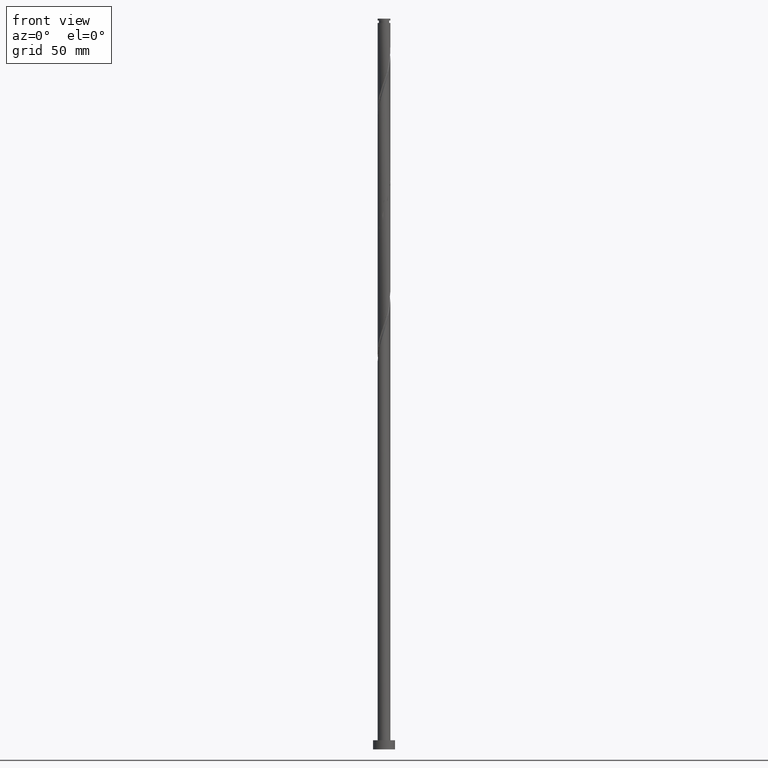
[diagram: clean part render]
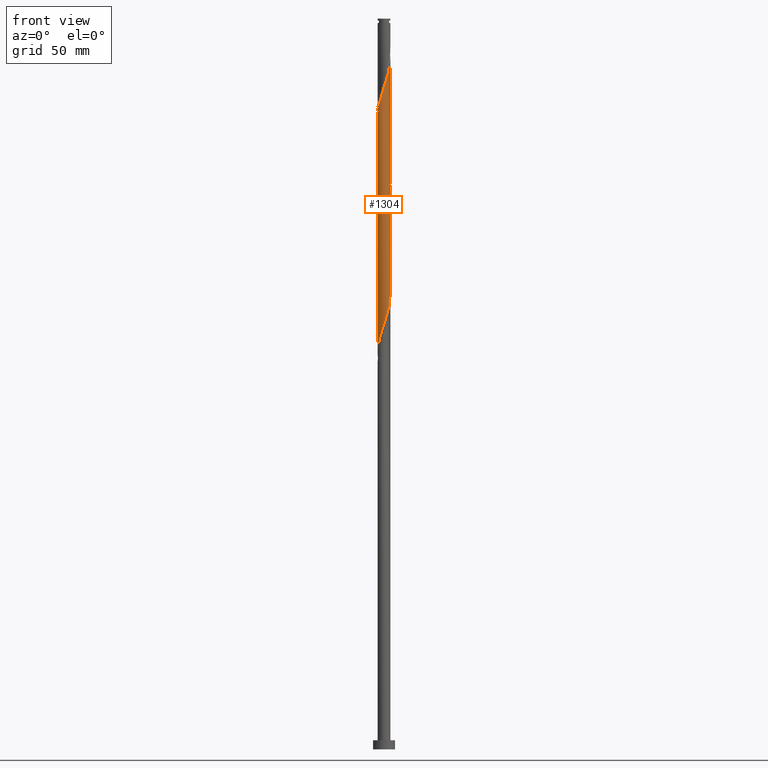
[diagram: same view with one face highlighted and labeled with its STEP entity id]
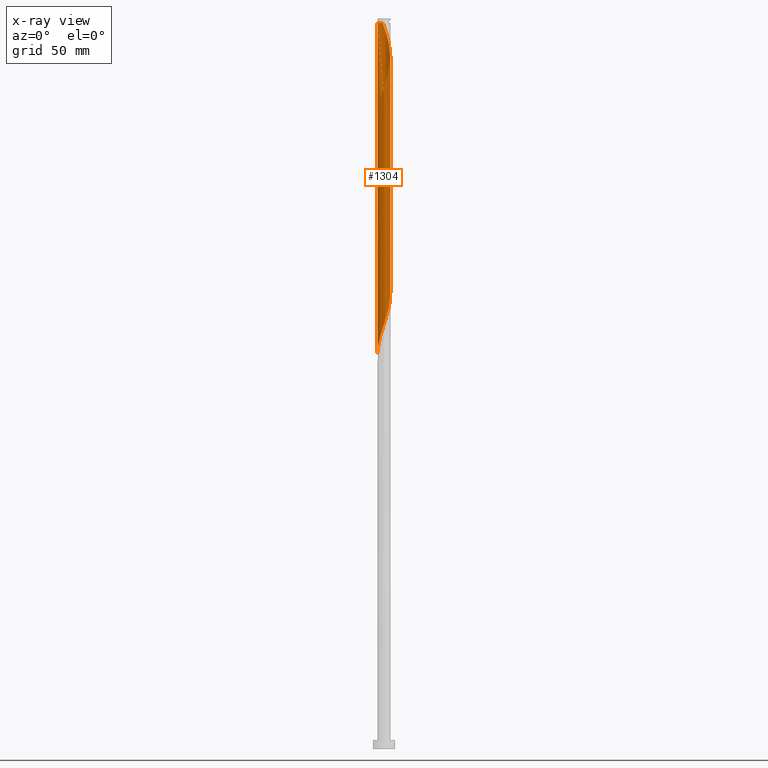
[diagram: x-ray of the same camera — body ghosted, the highlighted face saturated]
A machine part, front view. The second image highlights one B-rep face of the part: STEP entity #1304.
The next image is the same camera in x-ray: the body ghosted, the highlighted face saturated — about 0% of this face is hidden behind the body in this view.
In plain terms, the highlighted cylindrical surface (bore or boss wall) has radius 3.5 mm, axis along (-0, -0, -1).
Its self-contained STEP definition (entity closure, byte-faithful):
#7 = CARTESIAN_POINT ( 'NONE',  ( 0.03186589744862789592, -3.499854934790839422, 299.8179057432524814 ) ) ;
#16 = CARTESIAN_POINT ( 'NONE',  ( -3.499999999999999556, 2.361849636465069295E-15, 349.7211267645517978 ) ) ;
#20 = CARTESIAN_POINT ( 'NONE',  ( 3.338406945673213055, -1.051208383281283520, 246.4845724099191102 ) ) ;
#28 = CARTESIAN_POINT ( 'NONE',  ( -1.056998732935907181, -3.356795824426765940, 229.8179057432524814 ) ) ;
#33 = CARTESIAN_POINT ( 'NONE',  ( -3.448893398902860064, 0.7003276742506756580, 347.5956835210303097 ) ) ;
#40 = CARTESIAN_POINT ( 'NONE',  ( -2.082943168410044787, -2.812711815521447445, 355.3734612988081381 ) ) ;
#49 = CARTESIAN_POINT ( 'NONE',  ( 1.731817870186495023, -3.063679388059370456, 367.5956835210302529 ) ) ;
#53 = LINE ( 'NONE', #494, #579 ) ;
#55 = EDGE_CURVE ( 'NONE', #252, #1187, #414, .T. ) ;
#56 = CARTESIAN_POINT ( 'NONE',  ( -1.117945142577072115, 3.336993135519672471, 336.4845724099191671 ) ) ;
#59 = CARTESIAN_POINT ( 'NONE',  ( -3.435569825739060335, -0.7630101577229240206, 218.7067946321413388 ) ) ;
#69 = CARTESIAN_POINT ( 'NONE',  ( -0.6964912059746367623, -3.429999999999998828, 230.9290168543635389 ) ) ;
#72 = CARTESIAN_POINT ( 'NONE',  ( -2.622221531993310428, -2.318179077886497463, 353.1512390765859095 ) ) ;
#76 = CARTESIAN_POINT ( 'NONE',  ( 2.579576637429366492, 2.365541031482778056, 324.2623501876968248 ) ) ;
#79 = CARTESIAN_POINT ( 'NONE',  ( 3.338406945673213055, -1.051208383281283520, 313.1512390765858527 ) ) ;
#88 = VERTEX_POINT ( 'NONE', #1226 ) ;
#99 = ORIENTED_EDGE ( 'NONE', *, *, #1331, .T. ) ;
#109 = CARTESIAN_POINT ( 'NONE',  ( -0.6964912059746328765, 3.429999999999973515, 397.5956835210302529 ) ) ;
#136 = EDGE_LOOP ( 'NONE', ( #379, #99, #965, #461, #555, #592, #369, #526 ) ) ;
#143 = CARTESIAN_POINT ( 'NONE',  ( -0.3997154739106241750, 3.496505694008446241, 267.5956835210302529 ) ) ;
#155 = CARTESIAN_POINT ( 'NONE',  ( 3.201855650196823611, 1.460631686504083149, 254.2623501876969385 ) ) ;
#162 = CARTESIAN_POINT ( 'NONE',  ( 0.3359836790133661766, 3.503204175573232160, 265.3734612988079675 ) ) ;
#176 = CARTESIAN_POINT ( 'NONE',  ( 2.828205018532942816, 2.094416601696557745, 256.4845724099191102 ) ) ;
#187 = CARTESIAN_POINT ( 'NONE',  ( -2.378571092803158926, -2.593785666703845472, 354.2623501876970522 ) ) ;
#196 = CARTESIAN_POINT ( 'NONE',  ( -1.394408301561201657, -3.210237606243064867, 228.7067946321413956 ) ) ;
#198 = CARTESIAN_POINT ( 'NONE',  ( -3.227920492443571376, -1.402089092311887830, 349.8179057432522541 ) ) ;
#204 = CARTESIAN_POINT ( 'NONE',  ( 3.338406945673219273, 1.051208383281280856, 382.0401279654746531 ) ) ;
#211 = CARTESIAN_POINT ( 'NONE',  ( -1.731817870186493025, -3.063679388059364239, 227.5956835210301961 ) ) ;
#219 = CARTESIAN_POINT ( 'NONE',  ( 0.03186589744862789592, -3.499854934790839422, 233.1512390765858243 ) ) ;
#221 = CARTESIAN_POINT ( 'NONE',  ( 1.394408301561200547, -3.210237606243070196, 366.4845724099191102 ) ) ;
#227 = CARTESIAN_POINT ( 'NONE',  ( 2.828205018532942816, 2.094416601696557745, 323.1512390765858527 ) ) ;
#231 = CARTESIAN_POINT ( 'NONE',  ( 3.046896231813510880, -1.722330790690517643, 310.9290168543635673 ) ) ;
#235 = CARTESIAN_POINT ( 'NONE',  ( -0.3997154739106241750, 3.496505694008446241, 334.2623501876968248 ) ) ;
#239 = CARTESIAN_POINT ( 'NONE',  ( 2.865871971183454825, -2.042572489069149455, 309.8179057432524814 ) ) ;
#240 = VECTOR ( 'NONE', #1498, 1000.000000000000000 ) ;
#252 = VERTEX_POINT ( 'NONE', #1669 ) ;
#275 = CARTESIAN_POINT ( 'NONE',  ( 1.731817870186493691, 3.063679388059364239, 260.9290168543635673 ) ) ;
#278 = CARTESIAN_POINT ( 'NONE',  ( 2.330948256325789281, 2.636665461268995703, 325.3734612988079675 ) ) ;
#286 =( BOUNDED_CURVE ( )  B_SPLINE_CURVE ( 2, ( #1642, #658, #636, #1496, #788, #198, #1486, #1354, #72, #187, #40, #1210, #778, #1805, #1344, #353, #1231, #1507, #1815, #331, #221, #49, #626, #492, #1786, #480, #920, #1076, #343, #1087, #1665, #929, #510, #947, #204, #797, #1364, #648, #1221, #938, #1519, #1095, #1673, #363, #404, #1702, #992, #1387, #109 ),
 .UNSPECIFIED., .F., .T. ) 
 B_SPLINE_CURVE_WITH_KNOTS ( ( 3, 2, 2, 2, 2, 2, 2, 2, 2, 2, 2, 2, 2, 2, 2, 2, 2, 2, 2, 2, 2, 2, 2, 2, 3 ),
 ( 0.5545286012773115170, 0.5583333333333333481, 0.5666666666666666519, 0.5750000000000000666, 0.5833333333333333703, 0.5916666666666667851, 0.6000000000000000888, 0.6083333333333335036, 0.6166666666666669183, 0.6250000000000002220, 0.6333333333333335258, 0.6416666666666668295, 0.6500000000000002442, 0.6583333333333336590, 0.6666666666666670737, 0.6750000000000003775, 0.6833333333333336812, 0.6916666666666670960, 0.7000000000000003997, 0.7083333333333337034, 0.7166666666666671182, 0.7250000000000005329, 0.7333333333333339477, 0.7416666666666672514, 0.7500000000000005551 ),
 .UNSPECIFIED. ) 
 CURVE ( )  GEOMETRIC_REPRESENTATION_ITEM ( )  RATIONAL_B_SPLINE_CURVE ( ( 0.9066196499552461319, 0.9068171577856589671, 0.9090909090909577994, 0.9041108139712060732, 0.9090909090909577994, 0.9041108139712060732, 0.9090909090909577994, 0.9041108139712060732, 0.9090909090909577994, 0.9041108139712060732, 0.9090909090909577994, 0.9041108139712060732, 0.9090909090909577994, 0.9041108139712060732, 0.9090909090909577994, 0.9041108139712060732, 0.9090909090909577994, 0.9041108139712060732, 0.9090909090909577994, 0.9041108139712060732, 0.9090909090909577994, 0.9041108139712060732, 0.9090909090909577994, 0.9041108139712060732, 0.9090909090909577994, 0.9041108139712060732, 0.9090909090909577994, 0.9041108139712060732, 0.9090909090909577994, 0.9041108139712060732, 0.9090909090909577994, 0.9041108139712060732, 0.9090909090909577994, 0.9041108139712060732, 0.9090909090909577994, 0.9041108139712060732, 0.9090909090909577994, 0.9041108139712060732, 0.9090909090909577994, 0.9041108139712060732, 0.9090909090909577994, 0.9041108139712060732, 0.9090909090909577994, 0.9041108139712060732, 0.9090909090909577994, 0.9041108139712060732, 0.9090909090909577994, 0.9041108139712057401, 0.9090909090909581325 ) ) 
 REPRESENTATION_ITEM ( '' )  );
#287 = CARTESIAN_POINT ( 'NONE',  ( -3.477351469971240228, -0.3975257907216213082, 284.2623501876969385 ) ) ;
#295 = CARTESIAN_POINT ( 'NONE',  ( -3.015030334364882769, -1.777524144100320669, 288.7067946321414524 ) ) ;
#303 = CARTESIAN_POINT ( 'NONE',  ( 3.519133114203419233, 0.03204142372031550806, 249.8179057432524246 ) ) ;
#313 = CARTESIAN_POINT ( 'NONE',  ( -0.6964912059746367623, -3.429999999999998828, 297.5956835210303097 ) ) ;
#327 = DIRECTION ( 'NONE',  ( -0.000000000000000000, -0.000000000000000000, -1.000000000000000000 ) ) ;
#331 = CARTESIAN_POINT ( 'NONE',  ( 1.056998732935906293, -3.356795824426772157, 365.3734612988079675 ) ) ;
#336 = CARTESIAN_POINT ( 'NONE',  ( -3.484013256553140536, 0.3341431252651790307, 348.7067946321413956 ) ) ;
#337 = DIRECTION ( 'NONE',  ( -0.000000000000000000, -0.000000000000000000, -1.000000000000000000 ) ) ;
#343 = CARTESIAN_POINT ( 'NONE',  ( 3.318712737967946858, -1.111820922113508248, 375.3734612988080812 ) ) ;
#349 = CARTESIAN_POINT ( 'NONE',  ( 1.117945142577071449, -3.336993135519672471, 236.4845724099191386 ) ) ;
#353 = CARTESIAN_POINT ( 'NONE',  ( -0.3997154739106256183, -3.496505694008452014, 360.9290168543636241 ) ) ;
#357 = CARTESIAN_POINT ( 'NONE',  ( -0.03186589744862874246, 3.499854934790839422, 333.1512390765857390 ) ) ;
#360 = CARTESIAN_POINT ( 'NONE',  ( -2.330948256325789281, -2.636665461268995703, 225.3734612988080244 ) ) ;
#363 = CARTESIAN_POINT ( 'NONE',  ( 1.117945142577075890, 3.336993135519675580, 392.0401279654747100 ) ) ;
#369 = ORIENTED_EDGE ( 'NONE', *, *, #1528, .T. ) ;
#376 = CARTESIAN_POINT ( 'NONE',  ( 3.435569825739060335, 0.7630101577229226884, 318.7067946321413388 ) ) ;
#379 = ORIENTED_EDGE ( 'NONE', *, *, #1829, .F. ) ;
#404 = CARTESIAN_POINT ( 'NONE',  ( 0.7588303082438525582, 3.416749414764063797, 393.1512390765858527 ) ) ;
#414 =( BOUNDED_CURVE ( )  B_SPLINE_CURVE ( 2, ( #16, #782, #336, #33, #630, #1205, #924, #1792, #484, #1802, #1070, #1368, #1081, #56, #853, #235, #357, #953, #1434, #1548, #1282, #1111, #506, #278, #76, #227, #1727, #515, #1103, #376, #809, #1538, #1392 ),
 .UNSPECIFIED., .F., .T. ) 
 B_SPLINE_CURVE_WITH_KNOTS ( ( 3, 2, 2, 2, 2, 2, 2, 2, 2, 2, 2, 2, 2, 2, 2, 2, 3 ),
 ( 0.4295286012773113504, 0.4333333333333333481, 0.4416666666666666519, 0.4500000000000000111, 0.4583333333333333148, 0.4666666666666666741, 0.4749999999999999778, 0.4833333333333333370, 0.4916666666666666408, 0.5000000000000000000, 0.5083333333333333037, 0.5166666666666667185, 0.5250000000000000222, 0.5333333333333333259, 0.5416666666666666297, 0.5500000000000000444, 0.5545286012773114059 ),
 .UNSPECIFIED. ) 
 CURVE ( )  GEOMETRIC_REPRESENTATION_ITEM ( )  RATIONAL_B_SPLINE_CURVE ( ( 0.9066196499552398036, 0.9068171577856525278, 0.9090909090909514711, 0.9041108139711997449, 0.9090909090909514711, 0.9041108139711997449, 0.9090909090909514711, 0.9041108139711997449, 0.9090909090909514711, 0.9041108139711997449, 0.9090909090909514711, 0.9041108139711997449, 0.9090909090909514711, 0.9041108139711997449, 0.9090909090909514711, 0.9041108139711997449, 0.9090909090909514711, 0.9041108139711997449, 0.9090909090909514711, 0.9041108139711997449, 0.9090909090909514711, 0.9041108139711997449, 0.9090909090909514711, 0.9041108139711997449, 0.9090909090909514711, 0.9041108139711997449, 0.9090909090909514711, 0.9041108139711997449, 0.9090909090909514711, 0.9041108139711997449, 0.9090909090909514711, 0.9063845652764986882, 0.9066196499552398036 ) ) 
 REPRESENTATION_ITEM ( '' )  );
#424 = CARTESIAN_POINT ( 'NONE',  ( -0.6964912059746328765, 3.429999999999973515, 397.5956835210302529 ) ) ;
#438 = CARTESIAN_POINT ( 'NONE',  ( -3.201855650196823166, -1.460631686504083815, 287.5956835210301961 ) ) ;
#449 = CARTESIAN_POINT ( 'NONE',  ( 3.318712737967942417, 1.111820922113502030, 253.1512390765858243 ) ) ;
#458 = CARTESIAN_POINT ( 'NONE',  ( 1.394408301561201657, 3.210237606243064867, 262.0401279654747100 ) ) ;
#461 = ORIENTED_EDGE ( 'NONE', *, *, #1648, .T. ) ;
#477 = CARTESIAN_POINT ( 'NONE',  ( 3.046896231813510880, -1.722330790690517643, 244.2623501876969669 ) ) ;
#480 = CARTESIAN_POINT ( 'NONE',  ( 2.828205018532945036, -2.094416601696563962, 372.0401279654748237 ) ) ;
#484 = CARTESIAN_POINT ( 'NONE',  ( -2.622221531993304211, 2.318179077886495687, 342.0401279654745963 ) ) ;
#492 = CARTESIAN_POINT ( 'NONE',  ( 2.330948256325790613, -2.636665461269001920, 369.8179057432524246 ) ) ;
#493 = LINE ( 'NONE', #608, #240 ) ;
#494 = CARTESIAN_POINT ( 'NONE',  ( -3.500000000000000000, 0.000000000000000000, 400.0000000000000000 ) ) ;
#498 = CARTESIAN_POINT ( 'NONE',  ( 2.622221531993304211, -2.318179077886496131, 242.0401279654746816 ) ) ;
#506 = CARTESIAN_POINT ( 'NONE',  ( 2.031383063256142929, 2.850172424664179083, 326.4845724099191102 ) ) ;
#507 = CARTESIAN_POINT ( 'NONE',  ( 0.000000000000000000, 0.000000000000000000, 400.0000000000000000 ) ) ;
#508 = CARTESIAN_POINT ( 'NONE',  ( 2.865871971183454825, -2.042572489069149455, 243.1512390765857958 ) ) ;
#510 = CARTESIAN_POINT ( 'NONE',  ( 3.484013256553146309, 0.3341431252651759776, 379.8179057432524814 ) ) ;
#515 = CARTESIAN_POINT ( 'NONE',  ( 3.201855650196823611, 1.460631686504083149, 320.9290168543635673 ) ) ;
#519 = DIRECTION ( 'NONE',  ( -0.000000000000000000, -0.000000000000000000, -1.000000000000000000 ) ) ;
#526 = ORIENTED_EDGE ( 'NONE', *, *, #55, .F. ) ;
#533 = VERTEX_POINT ( 'NONE', #747 ) ;
#555 = ORIENTED_EDGE ( 'NONE', *, *, #681, .F. ) ;
#573 = CARTESIAN_POINT ( 'NONE',  ( -0.7588303082438477842, 3.416749414764059356, 268.7067946321412819 ) ) ;
#579 = VECTOR ( 'NONE', #519, 1000.000000000000000 ) ;
#592 = ORIENTED_EDGE ( 'NONE', *, *, #1528, .F. ) ;
#597 = CARTESIAN_POINT ( 'NONE',  ( 1.056998732935909180, 3.356795824426765495, 263.1512390765857958 ) ) ;
#605 = CARTESIAN_POINT ( 'NONE',  ( -2.828205018532941928, -2.094416601696559521, 289.8179057432523678 ) ) ;
#608 = CARTESIAN_POINT ( 'NONE',  ( -3.500000000000000000, 0.000000000000000000, 400.0000000000000000 ) ) ;
#613 = CARTESIAN_POINT ( 'NONE',  ( 2.031383063256142929, 2.850172424664179083, 259.8179057432524814 ) ) ;
#623 = CARTESIAN_POINT ( 'NONE',  ( -3.015030334364882769, -1.777524144100320669, 222.0401279654747100 ) ) ;
#626 = CARTESIAN_POINT ( 'NONE',  ( 2.031383063256142485, -2.850172424664186188, 368.7067946321412819 ) ) ;
#630 = CARTESIAN_POINT ( 'NONE',  ( -3.338406945673213500, 1.051208383281281744, 346.4845724099192239 ) ) ;
#636 = CARTESIAN_POINT ( 'NONE',  ( -3.484013256553145865, -0.3341431252651777539, 346.4845724099192239 ) ) ;
#644 = CARTESIAN_POINT ( 'NONE',  ( 2.378571092803154485, -2.593785666703842807, 240.9290168543635389 ) ) ;
#648 = CARTESIAN_POINT ( 'NONE',  ( 2.865871971183461930, 2.042572489069149011, 385.3734612988080244 ) ) ;
#655 = CARTESIAN_POINT ( 'NONE',  ( -3.499999999999998668, -0.1994080810625160072, 216.9933847406029486 ) ) ;
#658 = CARTESIAN_POINT ( 'NONE',  ( -3.500000000000004441, -0.1674539975036249961, 345.9787888030728027 ) ) ;
#665 = EDGE_CURVE ( 'NONE', #533, #777, #286, .T. ) ;
#679 = CARTESIAN_POINT ( 'NONE',  ( 2.622221531993304211, -2.318179077886496131, 308.7067946321413388 ) ) ;
#681 = EDGE_CURVE ( 'NONE', #1187, #1533, #1342, .T. ) ;
#709 = CARTESIAN_POINT ( 'NONE',  ( 3.499999999999999112, -0.1674539975036233030, 315.8792449056543319 ) ) ;
#723 = CARTESIAN_POINT ( 'NONE',  ( -2.031383063256141597, -2.850172424664179971, 293.1512390765857958 ) ) ;
#734 = CARTESIAN_POINT ( 'NONE',  ( -0.03186589744862874246, 3.499854934790839422, 266.4845724099191102 ) ) ;
#744 = CARTESIAN_POINT ( 'NONE',  ( 1.787315244016925320, -3.031637964339046754, 305.3734612988079675 ) ) ;
#747 = CARTESIAN_POINT ( 'NONE',  ( -3.500000000000005329, -7.025755247712498487E-16, 345.4702402775087648 ) ) ;
#754 = CARTESIAN_POINT ( 'NONE',  ( 0.7588303082438466740, -3.416749414764060244, 302.0401279654746531 ) ) ;
#761 = CYLINDRICAL_SURFACE ( 'NONE', #985, 3.500000000000000000 ) ;
#764 = CARTESIAN_POINT ( 'NONE',  ( 3.448893398902860064, -0.7003276742506759911, 247.5956835210302529 ) ) ;
#777 = VERTEX_POINT ( 'NONE', #424 ) ;
#778 = CARTESIAN_POINT ( 'NONE',  ( -1.452630193297002714, -3.184315549929363609, 357.5956835210301961 ) ) ;
#782 = CARTESIAN_POINT ( 'NONE',  ( -3.499999999999999556, 0.1674539975036204165, 349.2125782389877031 ) ) ;
#785 = CARTESIAN_POINT ( 'NONE',  ( -3.201855650196823166, -1.460631686504083815, 220.9290168543635673 ) ) ;
#788 = CARTESIAN_POINT ( 'NONE',  ( -3.338406945673218829, -1.051208383281281966, 348.7067946321413388 ) ) ;
#790 = FACE_OUTER_BOUND ( 'NONE', #136, .T. ) ;
#797 = CARTESIAN_POINT ( 'NONE',  ( 3.227920492443572265, 1.402089092311885832, 383.1512390765857958 ) ) ;
#804 = CARTESIAN_POINT ( 'NONE',  ( -2.579576637429366048, -2.365541031482778056, 224.2623501876969385 ) ) ;
#809 = CARTESIAN_POINT ( 'NONE',  ( 3.477351469971240228, 0.3975257907216208086, 317.5956835210302529 ) ) ;
#832 = CARTESIAN_POINT ( 'NONE',  ( -3.499999999999999556, -4.798441350033463955E-15, 216.3877934312184266 ) ) ;
#851 = CARTESIAN_POINT ( 'NONE',  ( 3.499999999999999556, 3.348445054228958981E-15, 316.3877934312184266 ) ) ;
#853 = CARTESIAN_POINT ( 'NONE',  ( -0.7588303082438477842, 3.416749414764059356, 335.3734612988079675 ) ) ;
#867 = VECTOR ( 'NONE', #1255, 1000.000000000000000 ) ;
#873 = CARTESIAN_POINT ( 'NONE',  ( -2.865871971183456601, 2.042572489069147679, 276.4845724099191102 ) ) ;
#883 = CARTESIAN_POINT ( 'NONE',  ( -3.484013256553140536, 0.3341431252651790307, 282.0401279654748237 ) ) ;
#890 = CARTESIAN_POINT ( 'NONE',  ( -1.117945142577072115, 3.336993135519672471, 269.8179057432524814 ) ) ;
#901 = CARTESIAN_POINT ( 'NONE',  ( -2.330948256325789281, -2.636665461268995703, 292.0401279654747668 ) ) ;
#920 = CARTESIAN_POINT ( 'NONE',  ( 3.015030334364886766, -1.777524144100325554, 373.1512390765857958 ) ) ;
#924 = CARTESIAN_POINT ( 'NONE',  ( -3.046896231813510880, 1.722330790690516977, 344.2623501876968817 ) ) ;
#927 = CIRCLE ( 'NONE', #1658, 3.499999999999963585 ) ;
#929 = CARTESIAN_POINT ( 'NONE',  ( 3.519133114203425450, -0.03204142372032056651, 378.7067946321412819 ) ) ;
#938 = CARTESIAN_POINT ( 'NONE',  ( 2.378571092803159370, 2.593785666703844583, 387.5956835210302529 ) ) ;
#947 = CARTESIAN_POINT ( 'NONE',  ( 3.448893398902866281, 0.7003276742506752139, 380.9290168543635104 ) ) ;
#953 = CARTESIAN_POINT ( 'NONE',  ( 0.3359836790133661766, 3.503204175573232160, 332.0401279654745963 ) ) ;
#965 = ORIENTED_EDGE ( 'NONE', *, *, #665, .F. ) ;
#985 = AXIS2_PLACEMENT_3D ( 'NONE', #507, #337, #1359 ) ;
#992 = CARTESIAN_POINT ( 'NONE',  ( 0.03186589744863134455, 3.499854934790845196, 395.3734612988079675 ) ) ;
#1003 = CARTESIAN_POINT ( 'NONE',  ( -3.519133114203419233, -0.03204142372031753422, 283.1512390765857958 ) ) ;
#1016 = CARTESIAN_POINT ( 'NONE',  ( -3.435569825739060335, -0.7630101577229240206, 285.3734612988080244 ) ) ;
#1030 = CARTESIAN_POINT ( 'NONE',  ( -3.227920492443566047, 1.402089092311887386, 278.7067946321414524 ) ) ;
#1039 = CARTESIAN_POINT ( 'NONE',  ( -2.579576637429366048, -2.365541031482778056, 290.9290168543635104 ) ) ;
#1046 = CARTESIAN_POINT ( 'NONE',  ( -2.622221531993304211, 2.318179077886495687, 275.3734612988080812 ) ) ;
#1054 = CARTESIAN_POINT ( 'NONE',  ( -3.477351469971240228, -0.3975257907216213082, 217.5956835210302813 ) ) ;
#1062 = CARTESIAN_POINT ( 'NONE',  ( 0.000000000000000000, 0.000000000000000000, 397.5956835210302529 ) ) ;
#1070 = CARTESIAN_POINT ( 'NONE',  ( -2.082943168410040791, 2.812711815521443448, 339.8179057432524814 ) ) ;
#1076 = CARTESIAN_POINT ( 'NONE',  ( 3.201855650196827607, -1.460631686504087368, 374.2623501876968817 ) ) ;
#1081 = CARTESIAN_POINT ( 'NONE',  ( -1.452630193296999606, 3.184315549929359612, 337.5956835210303097 ) ) ;
#1084 = CARTESIAN_POINT ( 'NONE',  ( 1.787315244016925320, -3.031637964339046754, 238.7067946321413672 ) ) ;
#1087 = CARTESIAN_POINT ( 'NONE',  ( 3.435569825739065664, -0.7630101577229290166, 376.4845724099191102 ) ) ;
#1095 = CARTESIAN_POINT ( 'NONE',  ( 1.787315244016932425, 3.031637964339049418, 389.8179057432524814 ) ) ;
#1103 = CARTESIAN_POINT ( 'NONE',  ( 3.318712737967942417, 1.111820922113502030, 319.8179057432525951 ) ) ;
#1111 = CARTESIAN_POINT ( 'NONE',  ( 1.731817870186493691, 3.063679388059364239, 327.5956835210303666 ) ) ;
#1162 = CARTESIAN_POINT ( 'NONE',  ( -3.448893398902860064, 0.7003276742506756580, 280.9290168543634536 ) ) ;
#1171 = CARTESIAN_POINT ( 'NONE',  ( -3.046896231813510880, 1.722330790690516977, 277.5956835210302529 ) ) ;
#1181 = CARTESIAN_POINT ( 'NONE',  ( 0.3997154739106237309, -3.496505694008446241, 300.9290168543635104 ) ) ;
#1187 = VERTEX_POINT ( 'NONE', #1199 ) ;
#1199 = CARTESIAN_POINT ( 'NONE',  ( 3.499999999999999556, 3.348445054228958981E-15, 316.3877934312183697 ) ) ;
#1205 = CARTESIAN_POINT ( 'NONE',  ( -3.227920492443566047, 1.402089092311887386, 345.3734612988080244 ) ) ;
#1210 = CARTESIAN_POINT ( 'NONE',  ( -1.787315244016930205, -3.031637964339050306, 356.4845724099191102 ) ) ;
#1212 = CARTESIAN_POINT ( 'NONE',  ( -3.499999999999963585, 0.000000000000000000, 397.5956835210302529 ) ) ;
#1221 = CARTESIAN_POINT ( 'NONE',  ( 2.622221531993311761, 2.318179077886496131, 386.4845724099191102 ) ) ;
#1226 = CARTESIAN_POINT ( 'NONE',  ( 3.500000000000000000, 4.286263797015735609E-16, 397.5956835210302529 ) ) ;
#1231 = CARTESIAN_POINT ( 'NONE',  ( -0.03186589744863092821, -3.499854934790845196, 362.0401279654748237 ) ) ;
#1255 = DIRECTION ( 'NONE',  ( -0.000000000000000000, -0.000000000000000000, -1.000000000000000000 ) ) ;
#1282 = CARTESIAN_POINT ( 'NONE',  ( 1.394408301561201657, 3.210237606243064867, 328.7067946321413388 ) ) ;
#1291 = CARTESIAN_POINT ( 'NONE',  ( -3.318712737967941973, -1.111820922113503807, 286.4845724099192239 ) ) ;
#1304 = ADVANCED_FACE ( 'NONE', ( #790 ), #761, .T. ) ;
#1315 = CARTESIAN_POINT ( 'NONE',  ( 1.452630193296999161, -3.184315549929359612, 304.2623501876968817 ) ) ;
#1323 = CARTESIAN_POINT ( 'NONE',  ( 3.477351469971240228, 0.3975257907216208086, 250.9290168543635957 ) ) ;
#1331 = EDGE_CURVE ( 'NONE', #1824, #777, #927, .T. ) ;
#1335 = CARTESIAN_POINT ( 'NONE',  ( -1.056998732935907181, -3.356795824426765940, 296.4845724099191671 ) ) ;
#1342 =( BOUNDED_CURVE ( )  B_SPLINE_CURVE ( 2, ( #851, #709, #1534, #1721, #79, #1542, #231, #239, #679, #1694, #1474, #744, #1315, #1430, #754, #1181, #7, #1587, #313, #1335, #1443, #1735, #723, #901, #1039, #605, #295, #438, #1291, #1016, #287, #1003, #883, #1162, #1767, #1030, #1171, #873, #1046, #1453, #1883, #1873, #1595, #890, #573, #143, #734, #162, #1893, #597, #458, #275, #613, #1619, #1745, #176, #1757, #155, #449, #1607, #1323, #303, #1462, #764, #20, #1352, #477, #508, #498, #644, #1671, #1084, #1662, #349, #1378, #1652, #219, #1515, #69, #28, #196, #211, #1775, #360, #804, #1483, #623, #785, #1370, #59, #1054, #655, #1630 ),
 .UNSPECIFIED., .F., .T. ) 
 B_SPLINE_CURVE_WITH_KNOTS ( ( 3, 2, 2, 2, 2, 2, 2, 2, 2, 2, 2, 2, 2, 2, 2, 2, 2, 2, 2, 2, 2, 2, 2, 2, 2, 2, 2, 2, 2, 2, 2, 2, 2, 2, 2, 2, 2, 2, 2, 2, 2, 2, 2, 2, 2, 2, 3 ),
 ( 0.5545286012773114059, 0.5583333333333333481, 0.5666666666666666519, 0.5749999999999999556, 0.5833333333333333703, 0.5916666666666666741, 0.5999999999999999778, 0.6083333333333332815, 0.6166666666666666963, 0.6250000000000000000, 0.6333333333333333037, 0.6416666666666667185, 0.6500000000000000222, 0.6583333333333333259, 0.6666666666666666297, 0.6750000000000000444, 0.6833333333333333481, 0.6916666666666666519, 0.6999999999999999556, 0.7083333333333333703, 0.7166666666666666741, 0.7249999999999999778, 0.7333333333333332815, 0.7416666666666666963, 0.7500000000000000000, 0.7583333333333333037, 0.7666666666666667185, 0.7750000000000000222, 0.7833333333333333259, 0.7916666666666666297, 0.8000000000000000444, 0.8083333333333333481, 0.8166666666666666519, 0.8249999999999999556, 0.8333333333333333703, 0.8416666666666666741, 0.8499999999999999778, 0.8583333333333332815, 0.8666666666666666963, 0.8750000000000000000, 0.8833333333333333037, 0.8916666666666668295, 0.9000000000000001332, 0.9083333333333334370, 0.9166666666666667407, 0.9250000000000000444, 0.9295286012773114059 ),
 .UNSPECIFIED. ) 
 CURVE ( )  GEOMETRIC_REPRESENTATION_ITEM ( )  RATIONAL_B_SPLINE_CURVE ( ( 0.9066196499552398036, 0.9068171577856525278, 0.9090909090909514711, 0.9041108139711997449, 0.9090909090909514711, 0.9041108139711997449, 0.9090909090909514711, 0.9041108139711997449, 0.9090909090909514711, 0.9041108139711997449, 0.9090909090909514711, 0.9041108139711997449, 0.9090909090909514711, 0.9041108139711997449, 0.9090909090909514711, 0.9041108139711997449, 0.9090909090909514711, 0.9041108139711997449, 0.9090909090909514711, 0.9041108139711997449, 0.9090909090909514711, 0.9041108139711997449, 0.9090909090909514711, 0.9041108139711997449, 0.9090909090909514711, 0.9041108139711997449, 0.9090909090909514711, 0.9041108139711997449, 0.9090909090909514711, 0.9041108139711997449, 0.9090909090909514711, 0.9041108139711997449, 0.9090909090909514711, 0.9041108139711997449, 0.9090909090909514711, 0.9041108139711997449, 0.9090909090909514711, 0.9041108139711997449, 0.9090909090909514711, 0.9041108139711997449, 0.9090909090909514711, 0.9041108139711997449, 0.9090909090909514711, 0.9041108139711997449, 0.9090909090909514711, 0.9041108139711997449, 0.9090909090909514711, 0.9041108139711997449, 0.9090909090909514711, 0.9041108139711997449, 0.9090909090909514711, 0.9041108139711997449, 0.9090909090909514711, 0.9041108139711997449, 0.9090909090909514711, 0.9041108139711997449, 0.9090909090909514711, 0.9041108139711997449, 0.9090909090909514711, 0.9041108139711997449, 0.9090909090909514711, 0.9041108139711997449, 0.9090909090909514711, 0.9041108139711997449, 0.9090909090909514711, 0.9041108139711997449, 0.9090909090909514711, 0.9041108139711997449, 0.9090909090909514711, 0.9041108139711997449, 0.9090909090909514711, 0.9041108139711997449, 0.9090909090909514711, 0.9041108139711997449, 0.9090909090909514711, 0.9041108139711997449, 0.9090909090909514711, 0.9041108139711997449, 0.9090909090909514711, 0.9041108139711997449, 0.9090909090909514711, 0.9041108139711997449, 0.9090909090909514711, 0.9041108139711997449, 0.9090909090909514711, 0.9041108139711997449, 0.9090909090909514711, 0.9041108139711997449, 0.9090909090909514711, 0.9041108139711997449, 0.9090909090909514711, 0.9063845652764986882, 0.9066196499552398036 ) ) 
 REPRESENTATION_ITEM ( '' )  );
#1344 = CARTESIAN_POINT ( 'NONE',  ( -0.7588303082438508929, -3.416749414764063797, 359.8179057432524814 ) ) ;
#1352 = CARTESIAN_POINT ( 'NONE',  ( 3.227920492443565603, -1.402089092311888718, 245.3734612988079959 ) ) ;
#1354 = CARTESIAN_POINT ( 'NONE',  ( -2.865871971183461930, -2.042572489069150343, 352.0401279654746531 ) ) ;
#1359 = DIRECTION ( 'NONE',  ( -1.000000000000000000, 0.000000000000000000, 0.000000000000000000 ) ) ;
#1364 = CARTESIAN_POINT ( 'NONE',  ( 3.046896231813516653, 1.722330790690519198, 384.2623501876970522 ) ) ;
#1368 = CARTESIAN_POINT ( 'NONE',  ( -1.787315244016926430, 3.031637964339046309, 338.7067946321412819 ) ) ;
#1370 = CARTESIAN_POINT ( 'NONE',  ( -3.318712737967941973, -1.111820922113503807, 219.8179057432524530 ) ) ;
#1378 = CARTESIAN_POINT ( 'NONE',  ( 0.7588303082438466740, -3.416749414764060244, 235.3734612988080244 ) ) ;
#1387 = CARTESIAN_POINT ( 'NONE',  ( -0.3359836790133880480, 3.503204175573237933, 396.4845724099192239 ) ) ;
#1392 = CARTESIAN_POINT ( 'NONE',  ( 3.499999999999999556, 3.348445054228958981E-15, 316.3877934312184266 ) ) ;
#1400 = LINE ( 'NONE', #1842, #867 ) ;
#1430 = CARTESIAN_POINT ( 'NONE',  ( 1.117945142577071449, -3.336993135519672471, 303.1512390765857958 ) ) ;
#1434 = CARTESIAN_POINT ( 'NONE',  ( 0.6964912059746372064, 3.429999999999998828, 330.9290168543635673 ) ) ;
#1443 = CARTESIAN_POINT ( 'NONE',  ( -1.394408301561201657, -3.210237606243064867, 295.3734612988079675 ) ) ;
#1453 = CARTESIAN_POINT ( 'NONE',  ( -2.378571092803154929, 2.593785666703841919, 274.2623501876968817 ) ) ;
#1462 = CARTESIAN_POINT ( 'NONE',  ( 3.484013256553140536, -0.3341431252651802519, 248.7067946321413956 ) ) ;
#1474 = CARTESIAN_POINT ( 'NONE',  ( 2.082943168410039902, -2.812711815521444336, 306.4845724099192239 ) ) ;
#1483 = CARTESIAN_POINT ( 'NONE',  ( -2.828205018532941928, -2.094416601696559521, 223.1512390765857390 ) ) ;
#1486 = CARTESIAN_POINT ( 'NONE',  ( -3.046896231813516653, -1.722330790690519864, 350.9290168543635673 ) ) ;
#1496 = CARTESIAN_POINT ( 'NONE',  ( -3.448893398902866281, -0.7003276742506758801, 347.5956835210303097 ) ) ;
#1498 = DIRECTION ( 'NONE',  ( -0.000000000000000000, -0.000000000000000000, -1.000000000000000000 ) ) ;
#1507 = CARTESIAN_POINT ( 'NONE',  ( 0.3359836790133652329, -3.503204175573237489, 363.1512390765857958 ) ) ;
#1515 = CARTESIAN_POINT ( 'NONE',  ( -0.3359836790133676754, -3.503204175573232604, 232.0401279654746531 ) ) ;
#1519 = CARTESIAN_POINT ( 'NONE',  ( 2.082943168410045232, 2.812711815521446557, 388.7067946321413956 ) ) ;
#1528 = EDGE_CURVE ( 'NONE', #88, #1187, #1400, .T. ) ;
#1533 = VERTEX_POINT ( 'NONE', #832 ) ;
#1534 = CARTESIAN_POINT ( 'NONE',  ( 3.484013256553140536, -0.3341431252651802519, 315.3734612988080812 ) ) ;
#1538 = CARTESIAN_POINT ( 'NONE',  ( 3.499999999999998668, 0.1994080810625146749, 316.9933847406028917 ) ) ;
#1542 = CARTESIAN_POINT ( 'NONE',  ( 3.227920492443565603, -1.402089092311888718, 312.0401279654747100 ) ) ;
#1548 = CARTESIAN_POINT ( 'NONE',  ( 1.056998732935909180, 3.356795824426765495, 329.8179057432524814 ) ) ;
#1587 = CARTESIAN_POINT ( 'NONE',  ( -0.3359836790133676754, -3.503204175573232604, 298.7067946321413388 ) ) ;
#1595 = CARTESIAN_POINT ( 'NONE',  ( -1.452630193296999606, 3.184315549929359612, 270.9290168543635673 ) ) ;
#1607 = CARTESIAN_POINT ( 'NONE',  ( 3.435569825739060335, 0.7630101577229226884, 252.0401279654746531 ) ) ;
#1619 = CARTESIAN_POINT ( 'NONE',  ( 2.330948256325789281, 2.636665461268995703, 258.7067946321413388 ) ) ;
#1630 = CARTESIAN_POINT ( 'NONE',  ( -3.499999999999999556, -4.798441350033463955E-15, 216.3877934312184550 ) ) ;
#1637 = DIRECTION ( 'NONE',  ( -1.000000000000000000, 0.000000000000000000, 0.000000000000000000 ) ) ;
#1642 = CARTESIAN_POINT ( 'NONE',  ( -3.500000000000005329, -7.025755247712498487E-16, 345.4702402775087648 ) ) ;
#1648 = EDGE_CURVE ( 'NONE', #533, #1533, #493, .T. ) ;
#1652 = CARTESIAN_POINT ( 'NONE',  ( 0.3997154739106237309, -3.496505694008446241, 234.2623501876968533 ) ) ;
#1658 = AXIS2_PLACEMENT_3D ( 'NONE', #1062, #327, #1637 ) ;
#1662 = CARTESIAN_POINT ( 'NONE',  ( 1.452630193296999161, -3.184315549929359612, 237.5956835210302245 ) ) ;
#1665 = CARTESIAN_POINT ( 'NONE',  ( 3.477351469971245557, -0.3975257907216231956, 377.5956835210302529 ) ) ;
#1669 = CARTESIAN_POINT ( 'NONE',  ( -3.499999999999999556, 2.361849636465069295E-15, 349.7211267645517978 ) ) ;
#1671 = CARTESIAN_POINT ( 'NONE',  ( 2.082943168410039902, -2.812711815521444336, 239.8179057432524814 ) ) ;
#1673 = CARTESIAN_POINT ( 'NONE',  ( 1.452630193297003158, 3.184315549929363609, 390.9290168543635673 ) ) ;
#1694 = CARTESIAN_POINT ( 'NONE',  ( 2.378571092803154485, -2.593785666703842807, 307.5956835210302529 ) ) ;
#1702 = CARTESIAN_POINT ( 'NONE',  ( 0.3997154739106261734, 3.496505694008452458, 394.2623501876967680 ) ) ;
#1721 = CARTESIAN_POINT ( 'NONE',  ( 3.448893398902860064, -0.7003276742506759911, 314.2623501876970522 ) ) ;
#1727 = CARTESIAN_POINT ( 'NONE',  ( 3.015030334364883213, 1.777524144100320447, 322.0401279654747100 ) ) ;
#1735 = CARTESIAN_POINT ( 'NONE',  ( -1.731817870186493025, -3.063679388059364239, 294.2623501876968248 ) ) ;
#1745 = CARTESIAN_POINT ( 'NONE',  ( 2.579576637429366492, 2.365541031482778056, 257.5956835210302529 ) ) ;
#1757 = CARTESIAN_POINT ( 'NONE',  ( 3.015030334364883213, 1.777524144100320447, 255.3734612988079959 ) ) ;
#1767 = CARTESIAN_POINT ( 'NONE',  ( -3.338406945673213500, 1.051208383281281744, 279.8179057432524246 ) ) ;
#1775 = CARTESIAN_POINT ( 'NONE',  ( -2.031383063256141597, -2.850172424664179971, 226.4845724099191102 ) ) ;
#1786 = CARTESIAN_POINT ( 'NONE',  ( 2.579576637429368713, -2.365541031482782497, 370.9290168543636241 ) ) ;
#1792 = CARTESIAN_POINT ( 'NONE',  ( -2.865871971183456601, 2.042572489069147679, 343.1512390765857958 ) ) ;
#1802 = CARTESIAN_POINT ( 'NONE',  ( -2.378571092803154929, 2.593785666703841919, 340.9290168543636241 ) ) ;
#1805 = CARTESIAN_POINT ( 'NONE',  ( -1.117945142577075446, -3.336993135519676912, 358.7067946321413388 ) ) ;
#1815 = CARTESIAN_POINT ( 'NONE',  ( 0.6964912059746365403, -3.430000000000005045, 364.2623501876969385 ) ) ;
#1824 = VERTEX_POINT ( 'NONE', #1212 ) ;
#1829 = EDGE_CURVE ( 'NONE', #1824, #252, #53, .T. ) ;
#1842 = CARTESIAN_POINT ( 'NONE',  ( 3.500000000000000000, 4.286263797015735609E-16, 400.0000000000000000 ) ) ;
#1873 = CARTESIAN_POINT ( 'NONE',  ( -1.787315244016926430, 3.031637964339046309, 272.0401279654747100 ) ) ;
#1883 = CARTESIAN_POINT ( 'NONE',  ( -2.082943168410040791, 2.812711815521443448, 273.1512390765858527 ) ) ;
#1893 = CARTESIAN_POINT ( 'NONE',  ( 0.6964912059746372064, 3.429999999999998828, 264.2623501876969385 ) ) ;